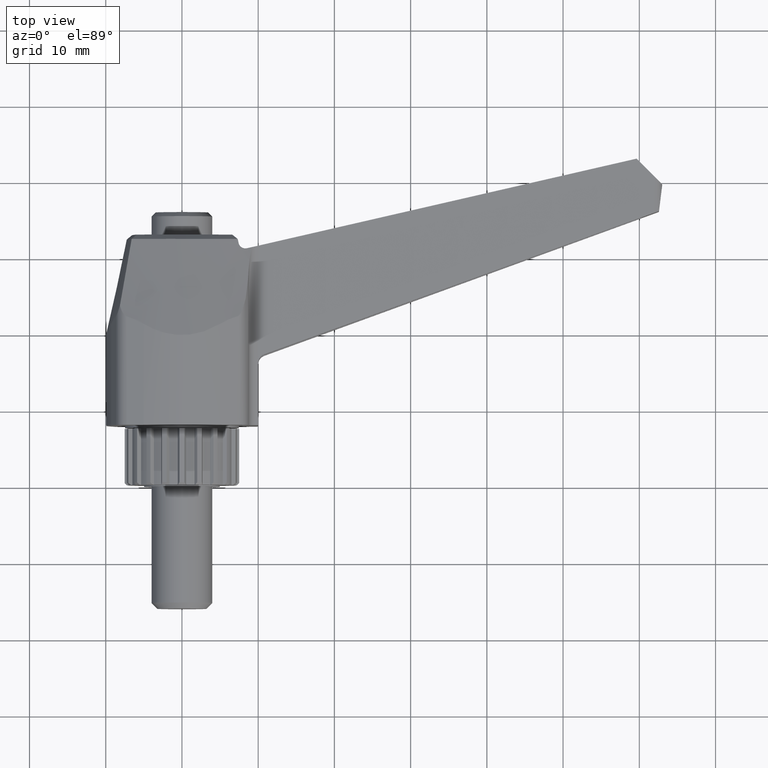
[diagram: clean part render]
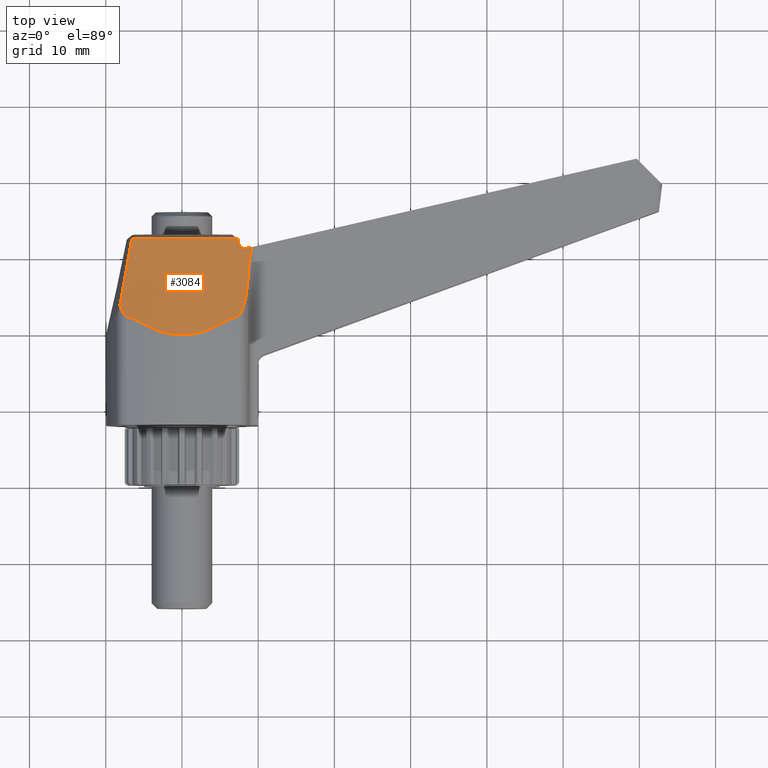
[diagram: same view with one face highlighted and labeled with its STEP entity id]
A machine part, top view. The second image highlights one B-rep face of the part: STEP entity #3084.
In plain terms, the highlighted conical surface has half-angle 12 deg.
Its self-contained STEP definition (entity closure, byte-faithful):
#16=ELLIPSE('',#3392,31.8731235747589,31.0202850800713);
#18=ELLIPSE('',#3397,38.5203805296889,29.4891679345241);
#36=B_SPLINE_CURVE_WITH_KNOTS('',3,(#5277,#5278,#5279,#5280,#5281,#5282,
#5283,#5284,#5285,#5286,#5287,#5288),.UNSPECIFIED.,.F.,.F.,(4,2,2,2,2,4),
(0.127745565673378,0.14327594049104,0.177998647508925,0.21272135452681,
0.247048233733336,0.2672710280666),.UNSPECIFIED.);
#37=B_SPLINE_CURVE_WITH_KNOTS('',3,(#5293,#5294,#5295,#5296),
 .UNSPECIFIED.,.F.,.F.,(4,4),(2.0715044188612E-007,0.00053614271093249),
 .UNSPECIFIED.);
#38=B_SPLINE_CURVE_WITH_KNOTS('',3,(#5313,#5314,#5315,#5316),
 .UNSPECIFIED.,.F.,.F.,(4,4),(-1.90518107225298,-1.08168540035583),
 .UNSPECIFIED.);
#39=B_SPLINE_CURVE_WITH_KNOTS('',3,(#5318,#5319,#5320,#5321,#5322,#5323,
#5324,#5325,#5326,#5327),.UNSPECIFIED.,.F.,.F.,(4,2,2,2,4),(-1.0140742382486,
-1.00783335760039,-0.989094278958693,-0.9516161216753,-0.838162052898651),
 .UNSPECIFIED.);
#40=B_SPLINE_CURVE_WITH_KNOTS('',3,(#5333,#5334,#5335,#5336,#5337,#5338,
#5339,#5340,#5341,#5342,#5343,#5344,#5345,#5346),.UNSPECIFIED.,.F.,.F.,
(4,2,2,2,2,2,4),(-3.65799650815023,-3.59657656243432,-3.36478179025589,
-3.13298701807746,-2.90119224589903,-2.6693974737206,-2.60797752800479),
 .UNSPECIFIED.);
#41=B_SPLINE_CURVE_WITH_KNOTS('',3,(#5352,#5353,#5354,#5355,#5356,#5357,
#5358,#5359,#5360,#5361,#5362,#5363,#5364,#5365),.UNSPECIFIED.,.F.,.F.,
(4,2,2,2,2,2,4),(-1.55089683986106,-1.36269491528464,-1.23211183304676,
-1.10152875080887,-1.06405059352548,-1.04531151488378,-1.03907063423557),
 .UNSPECIFIED.);
#42=B_SPLINE_CURVE_WITH_KNOTS('',3,(#5368,#5369,#5370,#5371,#5372,#5373,
#5374,#5375),.UNSPECIFIED.,.F.,.F.,(4,2,2,4),(0.359268737981897,0.435645626085089,
0.580860834780119,0.611465302432712),.UNSPECIFIED.);
#56=CONICAL_SURFACE('',#3394,33.99,12.0000000000001);
#118=(
BOUNDED_CURVE()
B_SPLINE_CURVE(2,(#5329,#5330,#5331),.UNSPECIFIED.,.F.,.F.)
B_SPLINE_CURVE_WITH_KNOTS((3,3),(1.53763830239144,1.88072087559455),
 .UNSPECIFIED.)
CURVE()
GEOMETRIC_REPRESENTATION_ITEM()
RATIONAL_B_SPLINE_CURVE((1.04654044827924,1.04884496566682,1.04986089987338))
REPRESENTATION_ITEM('')
);
#119=(
BOUNDED_CURVE()
B_SPLINE_CURVE(2,(#5348,#5349,#5350),.UNSPECIFIED.,.F.,.F.)
B_SPLINE_CURVE_WITH_KNOTS((3,3),(2.42170158514446,2.76478415834744),
 .UNSPECIFIED.)
CURVE()
GEOMETRIC_REPRESENTATION_ITEM()
RATIONAL_B_SPLINE_CURVE((1.04986089987338,1.04884496566682,1.04654044827924))
REPRESENTATION_ITEM('')
);
#402=LINE('',#5174,#643);
#643=VECTOR('',#4147,0.0146319005266277);
#799=FACE_OUTER_BOUND('',#980,.T.);
#980=EDGE_LOOP('',(#2631,#2632,#2633,#2634,#2635,#2636,#2637,#2638,#2639,
#2640,#2641,#2642,#2643,#2644));
#1166=CIRCLE('',#3395,30.3068748348297);
#1167=CIRCLE('',#3396,1611.64966540959);
#1432=VERTEX_POINT('',#5171);
#1433=VERTEX_POINT('',#5173);
#1447=VERTEX_POINT('',#5274);
#1448=VERTEX_POINT('',#5276);
#1449=VERTEX_POINT('',#5291);
#1451=VERTEX_POINT('',#5300);
#1455=VERTEX_POINT('',#5310);
#1456=VERTEX_POINT('',#5312);
#1457=VERTEX_POINT('',#5317);
#1458=VERTEX_POINT('',#5328);
#1459=VERTEX_POINT('',#5332);
#1460=VERTEX_POINT('',#5347);
#1461=VERTEX_POINT('',#5351);
#1462=VERTEX_POINT('',#5366);
#1857=EDGE_CURVE('',#1432,#1433,#402,.T.);
#1875=EDGE_CURVE('',#1448,#1447,#36,.T.);
#1878=EDGE_CURVE('',#1449,#1447,#37,.T.);
#1880=EDGE_CURVE('',#1448,#1451,#16,.F.);
#1885=EDGE_CURVE('',#1433,#1455,#1166,.T.);
#1886=EDGE_CURVE('',#1456,#1432,#38,.T.);
#1887=EDGE_CURVE('',#1457,#1456,#39,.T.);
#1888=EDGE_CURVE('',#1458,#1457,#118,.T.);
#1889=EDGE_CURVE('',#1459,#1458,#40,.T.);
#1890=EDGE_CURVE('',#1460,#1459,#119,.T.);
#1891=EDGE_CURVE('',#1461,#1460,#41,.T.);
#1892=EDGE_CURVE('',#1462,#1461,#1167,.T.);
#1893=EDGE_CURVE('',#1462,#1451,#42,.T.);
#1894=EDGE_CURVE('',#1455,#1449,#18,.F.);
#2631=ORIENTED_EDGE('',*,*,#1885,.F.);
#2632=ORIENTED_EDGE('',*,*,#1857,.F.);
#2633=ORIENTED_EDGE('',*,*,#1886,.F.);
#2634=ORIENTED_EDGE('',*,*,#1887,.F.);
#2635=ORIENTED_EDGE('',*,*,#1888,.F.);
#2636=ORIENTED_EDGE('',*,*,#1889,.F.);
#2637=ORIENTED_EDGE('',*,*,#1890,.F.);
#2638=ORIENTED_EDGE('',*,*,#1891,.F.);
#2639=ORIENTED_EDGE('',*,*,#1892,.F.);
#2640=ORIENTED_EDGE('',*,*,#1893,.T.);
#2641=ORIENTED_EDGE('',*,*,#1880,.F.);
#2642=ORIENTED_EDGE('',*,*,#1875,.T.);
#2643=ORIENTED_EDGE('',*,*,#1878,.F.);
#2644=ORIENTED_EDGE('',*,*,#1894,.F.);
#3084=ADVANCED_FACE('',(#799),#56,.T.);
#3392=AXIS2_PLACEMENT_3D('',#5301,#4177,#4178);
#3394=AXIS2_PLACEMENT_3D('',#5309,#4184,#4185);
#3395=AXIS2_PLACEMENT_3D('',#5311,#4186,#4187);
#3396=AXIS2_PLACEMENT_3D('',#5367,#4188,#4189);
#3397=AXIS2_PLACEMENT_3D('',#5376,#4190,#4191);
#4147=DIRECTION('',(0.787364891017228,0.615094394853813,0.0414175544045113));
#4177=DIRECTION('center_axis',(0.224758296295466,-0.974414546405358,0.));
#4178=DIRECTION('ref_axis',(-0.974414546405358,-0.224758296295466,-3.09035966998074E-015));
#4184=DIRECTION('center_axis',(0.,-1.,0.));
#4185=DIRECTION('ref_axis',(0.,0.,-1.));
#4186=DIRECTION('center_axis',(0.,1.,0.));
#4187=DIRECTION('ref_axis',(0.,0.,1.));
#4188=DIRECTION('center_axis',(0.961043175724668,-3.09211153416964E-012,
0.276398289417724));
#4189=DIRECTION('ref_axis',(-0.268101861689075,0.243169565356635,0.932196306709653));
#4190=DIRECTION('center_axis',(-0.629320391049839,-0.77714596145697,-8.88909025565188E-032));
#4191=DIRECTION('ref_axis',(0.77714596145697,-0.629320391049839,-1.10370486042312E-015));
#5171=CARTESIAN_POINT('',(-6.59453735489223,32.4141114395597,6.58267563356201));
#5173=CARTESIAN_POINT('',(-6.58301671012871,32.4231114395597,6.5832816510981));
#5174=CARTESIAN_POINT('',(-6.59453735489223,32.4141114395597,6.582675633562));
#5274=CARTESIAN_POINT('',(7.42998895362206,31.8956559805914,6.49762961849028));
#5276=CARTESIAN_POINT('',(8.51260426094841,31.2058034105625,6.35630758761401));
#5277=CARTESIAN_POINT('Ctrl Pts',(8.51260426094841,31.2058034105625,6.35630758761399));
#5278=CARTESIAN_POINT('Ctrl Pts',(8.46259481810633,31.194268240841,6.37336197053668));
#5279=CARTESIAN_POINT('Ctrl Pts',(8.41210964374347,31.1871748848489,6.38942634615581));
#5280=CARTESIAN_POINT('Ctrl Pts',(8.25179170151223,31.1778531244503,6.43708087028909));
#5281=CARTESIAN_POINT('Ctrl Pts',(8.13065823311183,31.1926882647987,6.46749843637607));
#5282=CARTESIAN_POINT('Ctrl Pts',(7.90272149568255,31.2713591832951,6.51213324857755));
#5283=CARTESIAN_POINT('Ctrl Pts',(7.7959437150397,31.3352600574594,6.52636589287717));
#5284=CARTESIAN_POINT('Ctrl Pts',(7.62469750102806,31.4886536354191,6.53737515979533));
#5285=CARTESIAN_POINT('Ctrl Pts',(7.54950901518221,31.5870842536055,6.53500751918372));
#5286=CARTESIAN_POINT('Ctrl Pts',(7.46713818767566,31.7601464499087,6.51797241212457));
#5287=CARTESIAN_POINT('Ctrl Pts',(7.44439411789845,31.8278850110046,6.50885629418703));
#5288=CARTESIAN_POINT('Ctrl Pts',(7.42998895362204,31.8956559805914,6.49762961849026));
#5291=CARTESIAN_POINT('',(7.32000040044636,32.4131114395597,6.41178504293343));
#5293=CARTESIAN_POINT('Ctrl Pts',(7.32000040044636,32.4131114395597,6.41178504293343));
#5294=CARTESIAN_POINT('Ctrl Pts',(7.3566618778405,32.2406327491533,6.44044058704895));
#5295=CARTESIAN_POINT('Ctrl Pts',(7.39332473473779,32.0681475686948,6.46905533171429));
#5296=CARTESIAN_POINT('Ctrl Pts',(7.42998895362206,31.8956559805914,6.49762961849028));
#5300=CARTESIAN_POINT('',(9.20710960608161,31.3659978973095,6.11023833602705));
#5301=CARTESIAN_POINT('Origin',(-1.52270184596337,28.8910613824251,-23.));
#5309=CARTESIAN_POINT('Origin',(0.,15.0953698905216,-23.));
#5310=CARTESIAN_POINT('',(7.30765142888102,32.4231114395597,6.4126655175624));
#5311=CARTESIAN_POINT('Origin',(0.,32.4231114395597,-23.));
#5312=CARTESIAN_POINT('',(-8.13800979101975,23.6497522696887,8.12541910019155));
#5313=CARTESIAN_POINT('Ctrl Pts',(-8.13800979101975,23.6497522696887,8.12541910019154));
#5314=CARTESIAN_POINT('Ctrl Pts',(-7.62808473143791,26.5764746991409,7.61573746871879));
#5315=CARTESIAN_POINT('Ctrl Pts',(-7.1101904586519,29.5195430134139,7.0980879835995));
#5316=CARTESIAN_POINT('Ctrl Pts',(-6.59453735489224,32.4141114395597,6.58267563356199));
#5317=CARTESIAN_POINT('',(-7.24016140570836,22.2240588453987,8.65737632033215));
#5318=CARTESIAN_POINT('Ctrl Pts',(-7.24016140570835,22.2240588453987,8.65737632033215));
#5319=CARTESIAN_POINT('Ctrl Pts',(-7.25919046629446,22.2291990077605,8.6519035175192));
#5320=CARTESIAN_POINT('Ctrl Pts',(-7.27787981825127,22.2355207660976,8.64623220621372));
#5321=CARTESIAN_POINT('Ctrl Pts',(-7.35125519654425,22.2650798038823,8.62286425685562));
#5322=CARTESIAN_POINT('Ctrl Pts',(-7.40305346321064,22.2969075083554,8.6038191858738));
#5323=CARTESIAN_POINT('Ctrl Pts',(-7.54758866384499,22.4112931651433,8.54474001144089));
#5324=CARTESIAN_POINT('Ctrl Pts',(-7.62956514446385,22.5128528794796,8.50271978486236));
#5325=CARTESIAN_POINT('Ctrl Pts',(-7.89601480776044,22.9114721709378,8.35032453012354));
#5326=CARTESIAN_POINT('Ctrl Pts',(-8.02727962719164,23.273171607869,8.23710587661521));
#5327=CARTESIAN_POINT('Ctrl Pts',(-8.13800979101886,23.649752269689,8.12541910019171));
#5328=CARTESIAN_POINT('',(-5.04346605303278,21.2553093776754,9.28915109717477));
#5329=CARTESIAN_POINT('Ctrl Pts',(-5.04346605308823,21.2553093777092,9.28915109715882));
#5330=CARTESIAN_POINT('Ctrl Pts',(-6.14528489484926,21.9283089313949,8.97226539335528));
#5331=CARTESIAN_POINT('Ctrl Pts',(-7.24016140570841,22.2240588453987,8.65737632033214));
#5332=CARTESIAN_POINT('',(5.0434660530336,21.2553093776759,9.28915109717454));
#5333=CARTESIAN_POINT('Ctrl Pts',(5.04346605303372,21.2553093776757,9.28915109717454));
#5334=CARTESIAN_POINT('Ctrl Pts',(4.86455579442066,21.1460295944351,9.34060611053015));
#5335=CARTESIAN_POINT('Ctrl Pts',(4.68269169017451,21.0413631016703,9.38994384343621));
#5336=CARTESIAN_POINT('Ctrl Pts',(3.8016133019108,20.566361874978,9.61405693599633));
#5337=CARTESIAN_POINT('Ctrl Pts',(3.06482989295744,20.2648369050503,9.75695956681099));
#5338=CARTESIAN_POINT('Ctrl Pts',(1.55040896281438,19.8579527521532,9.95003100706217));
#5339=CARTESIAN_POINT('Ctrl Pts',(0.772649240594743,19.752953698905,10.));
#5340=CARTESIAN_POINT('Ctrl Pts',(-0.772649240594781,19.752953698905,10.));
#5341=CARTESIAN_POINT('Ctrl Pts',(-1.55040896281442,19.8579527521532,9.95003100706216));
#5342=CARTESIAN_POINT('Ctrl Pts',(-3.06482989295748,20.2648369050503,9.75695956681099));
#5343=CARTESIAN_POINT('Ctrl Pts',(-3.80161330191085,20.566361874978,9.61405693599632));
#5344=CARTESIAN_POINT('Ctrl Pts',(-4.68269169017426,21.0413631016701,9.38994384343627));
#5345=CARTESIAN_POINT('Ctrl Pts',(-4.86455579442012,21.1460295944348,9.3406061105303));
#5346=CARTESIAN_POINT('Ctrl Pts',(-5.0434660530329,21.2553093776752,9.28915109717478));
#5347=CARTESIAN_POINT('',(7.24016140570834,22.2240588453987,8.65737632033216));
#5348=CARTESIAN_POINT('Ctrl Pts',(7.24016140570835,22.2240588453987,8.65737632033215));
#5349=CARTESIAN_POINT('Ctrl Pts',(6.14528489484963,21.928308931395,8.97226539335517));
#5350=CARTESIAN_POINT('Ctrl Pts',(5.04346605308904,21.2553093777097,9.28915109715858));
#5351=CARTESIAN_POINT('',(8.65737632033215,27.0215697070129,7.24016140570836));
#5352=CARTESIAN_POINT('Ctrl Pts',(8.65737632033215,27.0215697070129,7.24016140570835));
#5353=CARTESIAN_POINT('Ctrl Pts',(8.61202170723363,26.3670359336847,7.397860433064));
#5354=CARTESIAN_POINT('Ctrl Pts',(8.5462450807166,25.7301289929771,7.55717274945999));
#5355=CARTESIAN_POINT('Ctrl Pts',(8.38959218896825,24.713657617372,7.82438061355341));
#5356=CARTESIAN_POINT('Ctrl Pts',(8.30448202453837,24.2598898966233,7.9475075284699));
#5357=CARTESIAN_POINT('Ctrl Pts',(8.06814554028987,23.3828674934256,8.20254464414874));
#5358=CARTESIAN_POINT('Ctrl Pts',(7.92625367714234,22.9567107219586,8.33302948029891));
#5359=CARTESIAN_POINT('Ctrl Pts',(7.62956514446385,22.5128528794796,8.50271978486236));
#5360=CARTESIAN_POINT('Ctrl Pts',(7.54758866384499,22.4112931651434,8.54474001144089));
#5361=CARTESIAN_POINT('Ctrl Pts',(7.40305346321065,22.2969075083554,8.6038191858738));
#5362=CARTESIAN_POINT('Ctrl Pts',(7.35125519654426,22.2650798038823,8.62286425685562));
#5363=CARTESIAN_POINT('Ctrl Pts',(7.27787981825127,22.2355207660976,8.64623220621372));
#5364=CARTESIAN_POINT('Ctrl Pts',(7.25919046629446,22.2291990077605,8.6519035175192));
#5365=CARTESIAN_POINT('Ctrl Pts',(7.24016140570833,22.2240588453987,8.65737632033215));
#5366=CARTESIAN_POINT('',(8.78517520318019,28.8613439894804,6.79580176629317));
#5367=CARTESIAN_POINT('Origin',(440.743652007219,-364.882578937805,-1495.13370439896));
#5368=CARTESIAN_POINT('Ctrl Pts',(8.78517520318021,28.8613439894804,6.79580176629315));
#5369=CARTESIAN_POINT('Ctrl Pts',(8.80377573324185,29.1284437393012,6.73112729773028));
#5370=CARTESIAN_POINT('Ctrl Pts',(8.82730868757344,29.3929873604745,6.6655025511446));
#5371=CARTESIAN_POINT('Ctrl Pts',(8.9135860664949,30.1476441234055,6.47225041929789));
#5372=CARTESIAN_POINT('Ctrl Pts',(8.98865751958741,30.6268844182662,6.34322108564228));
#5373=CARTESIAN_POINT('Ctrl Pts',(9.14018805276865,31.1676166318064,6.17553076395725));
#5374=CARTESIAN_POINT('Ctrl Pts',(9.17104604787401,31.2672362408165,6.1436620834562));
#5375=CARTESIAN_POINT('Ctrl Pts',(9.20710960608285,31.3659978973089,6.11023833602673));
#5376=CARTESIAN_POINT('Origin',(5.15272409822245,34.1681371846226,-23.));